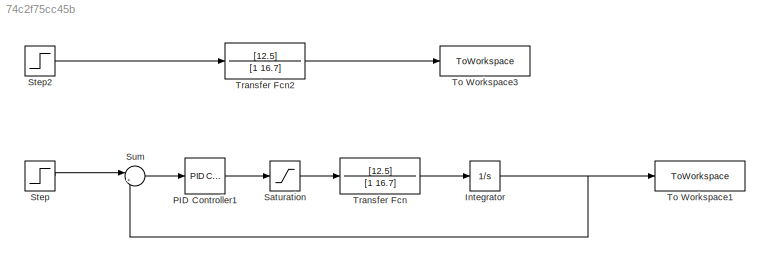
MODEL slx_74c2f75cc45b
KIND model
CONFIG AbsTol = auto
CONFIG EnableMultiTasking = off
CONFIG FixedStep = auto
CONFIG MaxStep = auto
CONFIG MinStep = auto
CONFIG RelTol = 1e-3
CONFIG SampleTimeConstraint = Unconstrained
CONFIG SolverName = VariableStepAuto
CONFIG StartTime = 0.0
CONFIG StopTime = 10.0
BLOCK [Integrator] Integrator
  Ports = [1, 1]
BLOCK [Reference] PID Controller1  REF=pid_lib/PID Controller
  Ports = [1, 1]
  SourceBlock = pid_lib/PID Controller
  SourceProductBaseCode = SL
  SourceType = PID 1dof
BLOCK [Saturate] Saturation
  LowerLimit = -7.5
  UpperLimit = 7.5
BLOCK [Step] Step
  SampleTime = 0
BLOCK [Step] Step2
  SampleTime = 0
BLOCK [Sum] Sum
  Inputs = |+-
  Ports = [2, 1]
BLOCK [ToWorkspace] To Workspace1
  FixptAsFi = on
  MaxDataPoints = inf
  Ports = [1]
  SampleTime = -1
  SaveFormat = Timeseries
  VariableName = Position
BLOCK [ToWorkspace] To Workspace3
  FixptAsFi = on
  MaxDataPoints = inf
  Ports = [1]
  SampleTime = -1
  SaveFormat = Timeseries
  VariableName = Position2
BLOCK [TransferFcn] Transfer Fcn
  Denominator = [1 16.7]
  Numerator = [12.5]
BLOCK [TransferFcn] Transfer Fcn2
  Denominator = [1 16.7]
  Numerator = [12.5]
NET Integrator:1 -> Sum:2, To Workspace1:1
LINE PID Controller1:1 -> Saturation:1
LINE Saturation:1 -> Transfer Fcn:1
LINE Step2:1 -> Transfer Fcn2:1
LINE Step:1 -> Sum:1
LINE Sum:1 -> PID Controller1:1
LINE Transfer Fcn2:1 -> To Workspace3:1
LINE Transfer Fcn:1 -> Integrator:1
note: NET lines group one-source signal fan-out (src -> all destinations, sorted); 1:1 wires keep LINE
